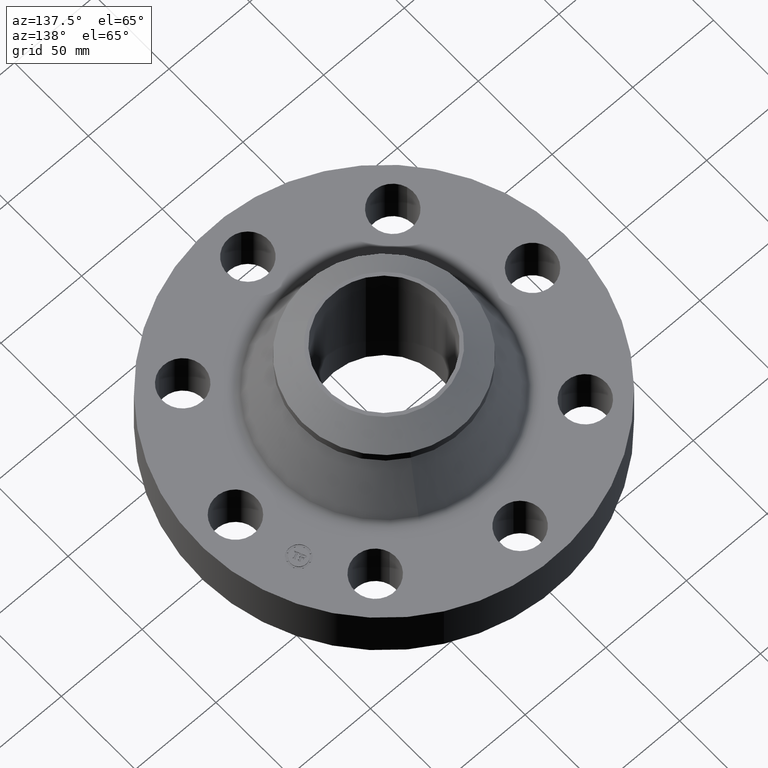
[diagram: clean part render]
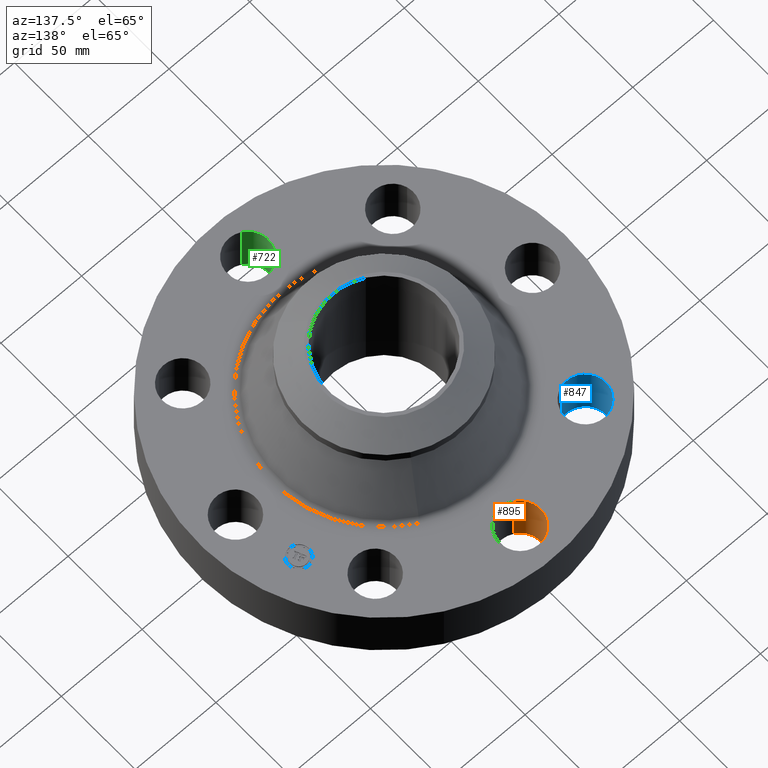
[diagram: same view with three faces highlighted in distinct colors, each labeled with its STEP entity id]
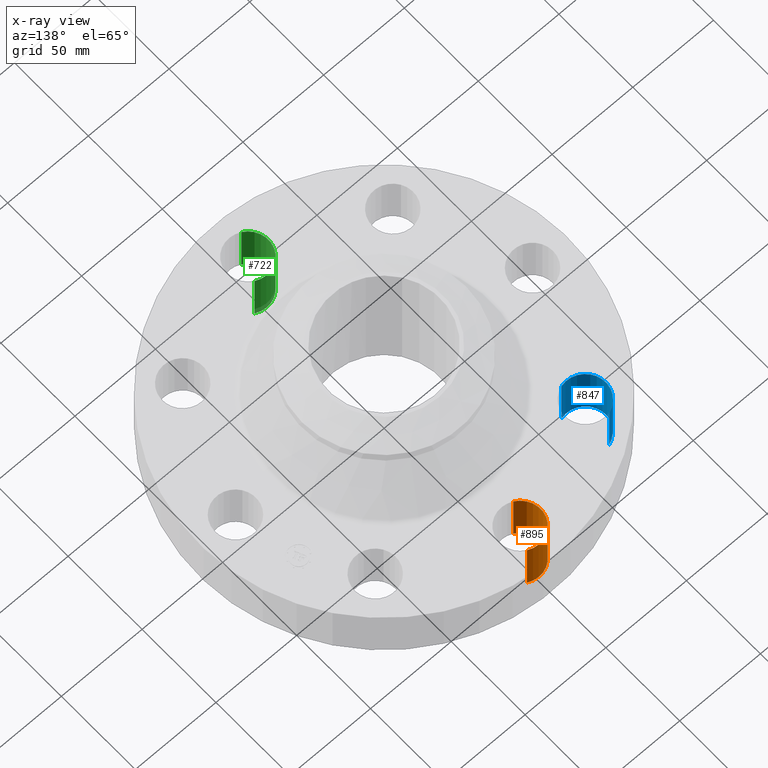
[diagram: x-ray of the same camera — body ghosted, the three highlighted faces saturated]
A machine part, auxiliary view with three faces highlighted in distinct colors.
The next image is the same camera in x-ray (body ghosted, the three faces saturated) — at least one of them is partly hidden behind the body in this view.
Their STEP definitions:

[orange] entity #895 — the highlighted cylindrical surface (edge-blend (fillet) strip) has radius 12.7 mm, axis along (0, 0, -1).
#273=AXIS2_PLACEMENT_3D('Circle Axis2P3D',#271,#272,$) ;
#461=AXIS2_PLACEMENT_3D('Circle Axis2P3D',#459,#460,$) ;
#877=AXIS2_PLACEMENT_3D('Cylinder Axis2P3D',#874,#875,#876) ;
#271=CARTESIAN_POINT('Axis2P3D Location',(-4.36655785895E-011,3.62500000003,0.)) ;
#275=CARTESIAN_POINT('Vertex',(-0.239712769298,3.18620871906,0.)) ;
#277=CARTESIAN_POINT('Vertex',(0.239712769298,4.06379128094,0.)) ;
#454=CARTESIAN_POINT('Vertex',(0.239712769302,4.06379128096,1.37999999999)) ;
#456=CARTESIAN_POINT('Vertex',(-0.239712769303,3.18620871906,1.37999999999)) ;
#459=CARTESIAN_POINT('Axis2P3D Location',(-4.36655785895E-011,3.62500000002,1.38000000001)) ;
#874=CARTESIAN_POINT('Axis2P3D Location',(-6.65901697039E-016,3.62500000001,1.37606299213)) ;
#879=CARTESIAN_POINT('Line Origine',(-0.239712769303,3.18620871906,0.690000000005)) ;
#884=CARTESIAN_POINT('Line Origine',(0.239712769303,4.06379128096,0.690000000005)) ;
#272=DIRECTION('Axis2P3D Direction',(0.,0.,-0.0393700787402)) ;
#460=DIRECTION('Axis2P3D Direction',(0.,0.,-0.0393700787402)) ;
#875=DIRECTION('Axis2P3D Direction',(0.,0.,-0.0393700787402)) ;
#876=DIRECTION('Axis2P3D XDirection',(-0.0188750212049,-0.0345504945626,0.)) ;
#880=DIRECTION('Vector Direction',(0.,0.,-0.0393700787402)) ;
#885=DIRECTION('Vector Direction',(0.,0.,-0.0393700787402)) ;
#881=VECTOR('Line Direction',#880,0.0393700787402) ;
#886=VECTOR('Line Direction',#885,0.0393700787402) ;
#890=ORIENTED_EDGE('',*,*,#883,.F.) ;
#891=ORIENTED_EDGE('',*,*,#279,.T.) ;
#892=ORIENTED_EDGE('',*,*,#888,.T.) ;
#893=ORIENTED_EDGE('',*,*,#463,.F.) ;
#895=ADVANCED_FACE('PartBody',(#894),#878,.F.) ;
#274=CIRCLE('generated circle',#273,0.499999999995) ;
#462=CIRCLE('generated circle',#461,0.499999999995) ;
#878=CYLINDRICAL_SURFACE('generated cylinder',#877,0.500000000002) ;
#279=EDGE_CURVE('',#276,#278,#274,.T.) ;
#463=EDGE_CURVE('',#457,#455,#462,.T.) ;
#883=EDGE_CURVE('',#276,#457,#882,.F.) ;
#888=EDGE_CURVE('',#278,#455,#887,.F.) ;
#889=EDGE_LOOP('',(#890,#891,#892,#893)) ;
#894=FACE_OUTER_BOUND('',#889,.T.) ;
#882=LINE('Line',#879,#881) ;
#887=LINE('Line',#884,#886) ;
#276=VERTEX_POINT('',#275) ;
#278=VERTEX_POINT('',#277) ;
#455=VERTEX_POINT('',#454) ;
#457=VERTEX_POINT('',#456) ;

[blue] entity #847 — the highlighted cylindrical surface (edge-blend (fillet) strip) has radius 12.7 mm, axis along (0, 0, -1).
#255=AXIS2_PLACEMENT_3D('Circle Axis2P3D',#253,#254,$) ;
#443=AXIS2_PLACEMENT_3D('Circle Axis2P3D',#441,#442,$) ;
#829=AXIS2_PLACEMENT_3D('Cylinder Axis2P3D',#826,#827,#828) ;
#253=CARTESIAN_POINT('Axis2P3D Location',(-2.56326208185,2.56326208183,0.)) ;
#257=CARTESIAN_POINT('Vertex',(-2.42249231624,2.08348726685,0.)) ;
#259=CARTESIAN_POINT('Vertex',(-2.70403184737,3.04303689683,0.)) ;
#436=CARTESIAN_POINT('Vertex',(-2.70403184738,3.0430368968,1.37999999999)) ;
#438=CARTESIAN_POINT('Vertex',(-2.42249231624,2.08348726682,1.37999999999)) ;
#441=CARTESIAN_POINT('Axis2P3D Location',(-2.56326208185,2.56326208182,1.38000000001)) ;
#826=CARTESIAN_POINT('Axis2P3D Location',(-2.56326208181,2.56326208181,1.37606299213)) ;
#831=CARTESIAN_POINT('Line Origine',(-2.42249231624,2.08348726682,0.690000000005)) ;
#836=CARTESIAN_POINT('Line Origine',(-2.70403184738,3.0430368968,0.690000000005)) ;
#254=DIRECTION('Axis2P3D Direction',(0.,0.,-0.0393700787402)) ;
#442=DIRECTION('Axis2P3D Direction',(0.,0.,-0.0393700787402)) ;
#827=DIRECTION('Axis2P3D Direction',(0.,0.,-0.0393700787402)) ;
#828=DIRECTION('Axis2P3D XDirection',(0.0110842335096,-0.0377775444876,0.)) ;
#832=DIRECTION('Vector Direction',(0.,0.,-0.0393700787402)) ;
#837=DIRECTION('Vector Direction',(0.,0.,-0.0393700787402)) ;
#833=VECTOR('Line Direction',#832,0.0393700787402) ;
#838=VECTOR('Line Direction',#837,0.0393700787402) ;
#842=ORIENTED_EDGE('',*,*,#835,.F.) ;
#843=ORIENTED_EDGE('',*,*,#261,.T.) ;
#844=ORIENTED_EDGE('',*,*,#840,.T.) ;
#845=ORIENTED_EDGE('',*,*,#445,.F.) ;
#847=ADVANCED_FACE('PartBody',(#846),#830,.F.) ;
#256=CIRCLE('generated circle',#255,0.5) ;
#444=CIRCLE('generated circle',#443,0.5) ;
#830=CYLINDRICAL_SURFACE('generated cylinder',#829,0.500000000002) ;
#261=EDGE_CURVE('',#258,#260,#256,.T.) ;
#445=EDGE_CURVE('',#439,#437,#444,.T.) ;
#835=EDGE_CURVE('',#258,#439,#834,.F.) ;
#840=EDGE_CURVE('',#260,#437,#839,.F.) ;
#841=EDGE_LOOP('',(#842,#843,#844,#845)) ;
#846=FACE_OUTER_BOUND('',#841,.T.) ;
#834=LINE('Line',#831,#833) ;
#839=LINE('Line',#836,#838) ;
#258=VERTEX_POINT('',#257) ;
#260=VERTEX_POINT('',#259) ;
#437=VERTEX_POINT('',#436) ;
#439=VERTEX_POINT('',#438) ;

[green] entity #722 — the highlighted cylindrical surface (edge-blend (fillet) strip) has radius 12.7 mm, axis along (0, -0, -1).
#210=AXIS2_PLACEMENT_3D('Circle Axis2P3D',#208,#209,$) ;
#380=AXIS2_PLACEMENT_3D('Circle Axis2P3D',#378,#379,$) ;
#714=AXIS2_PLACEMENT_3D('Cylinder Axis2P3D',#711,#712,#713) ;
#203=CARTESIAN_POINT('Vertex',(0.239712769298,-3.18620871907,0.)) ;
#205=CARTESIAN_POINT('Vertex',(-0.239712769298,-4.06379128096,0.)) ;
#208=CARTESIAN_POINT('Axis2P3D Location',(-4.36655785895E-011,-3.62499999999,0.)) ;
#378=CARTESIAN_POINT('Axis2P3D Location',(-4.36655785895E-011,-3.62499999999,1.38000000001)) ;
#382=CARTESIAN_POINT('Vertex',(-0.239712769302,-4.06379128096,1.37999999999)) ;
#384=CARTESIAN_POINT('Vertex',(0.239712769303,-3.18620871906,1.37999999999)) ;
#687=CARTESIAN_POINT('Line Origine',(0.239712769303,-3.18620871906,0.690000000005)) ;
#692=CARTESIAN_POINT('Line Origine',(-0.239712769303,-4.06379128096,0.690000000005)) ;
#711=CARTESIAN_POINT('Axis2P3D Location',(-3.37515236756E-016,-3.62500000001,1.37606299213)) ;
#209=DIRECTION('Axis2P3D Direction',(0.,0.,-0.0393700787402)) ;
#379=DIRECTION('Axis2P3D Direction',(0.,0.,-0.0393700787402)) ;
#688=DIRECTION('Vector Direction',(0.,0.,-0.0393700787402)) ;
#693=DIRECTION('Vector Direction',(0.,0.,-0.0393700787402)) ;
#712=DIRECTION('Axis2P3D Direction',(0.,-0.,-0.0393700787402)) ;
#713=DIRECTION('Axis2P3D XDirection',(-0.0188750212048,-0.0345504945627,0.)) ;
#689=VECTOR('Line Direction',#688,0.0393700787402) ;
#694=VECTOR('Line Direction',#693,0.0393700787402) ;
#717=ORIENTED_EDGE('',*,*,#696,.F.) ;
#718=ORIENTED_EDGE('',*,*,#212,.T.) ;
#719=ORIENTED_EDGE('',*,*,#691,.T.) ;
#720=ORIENTED_EDGE('',*,*,#386,.F.) ;
#722=ADVANCED_FACE('PartBody',(#721),#715,.F.) ;
#211=CIRCLE('generated circle',#210,0.499999999995) ;
#381=CIRCLE('generated circle',#380,0.499999999995) ;
#715=CYLINDRICAL_SURFACE('generated cylinder',#714,0.500000000002) ;
#212=EDGE_CURVE('',#206,#204,#211,.T.) ;
#386=EDGE_CURVE('',#383,#385,#381,.T.) ;
#691=EDGE_CURVE('',#204,#385,#690,.F.) ;
#696=EDGE_CURVE('',#206,#383,#695,.F.) ;
#716=EDGE_LOOP('',(#717,#718,#719,#720)) ;
#721=FACE_OUTER_BOUND('',#716,.T.) ;
#690=LINE('Line',#687,#689) ;
#695=LINE('Line',#692,#694) ;
#204=VERTEX_POINT('',#203) ;
#206=VERTEX_POINT('',#205) ;
#383=VERTEX_POINT('',#382) ;
#385=VERTEX_POINT('',#384) ;